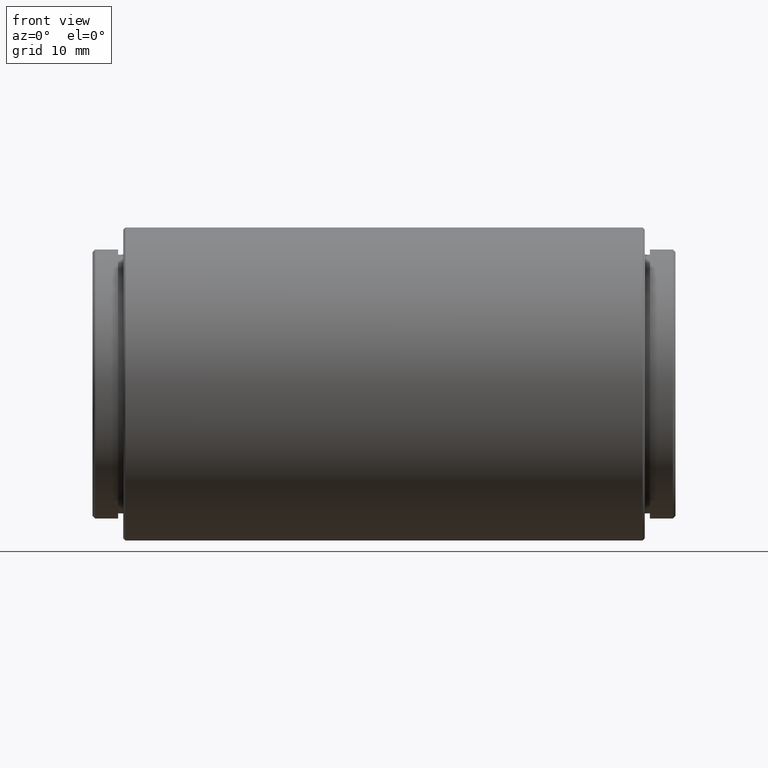
[diagram: clean part render]
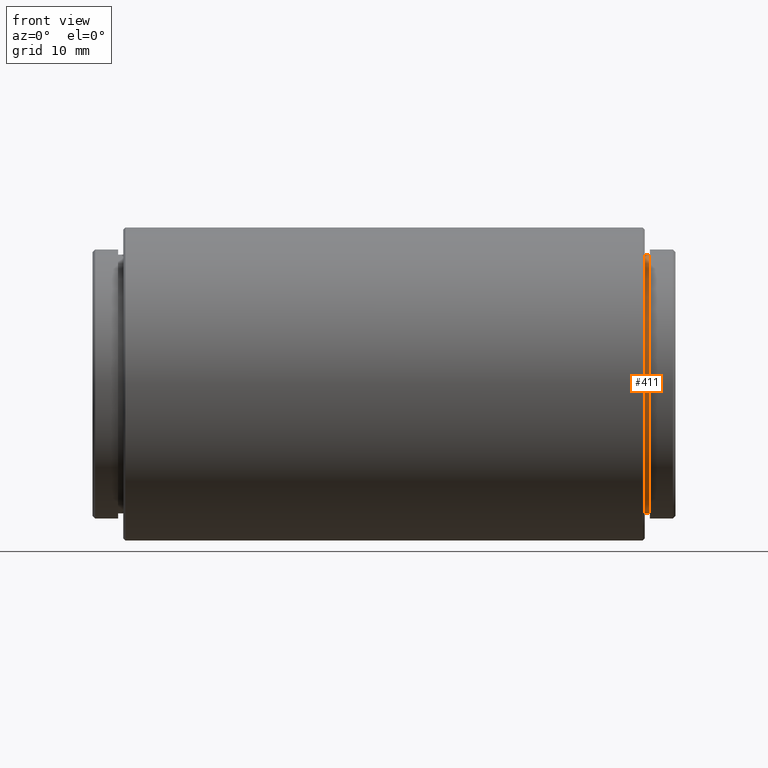
[diagram: same view with one face highlighted and labeled with its STEP entity id]
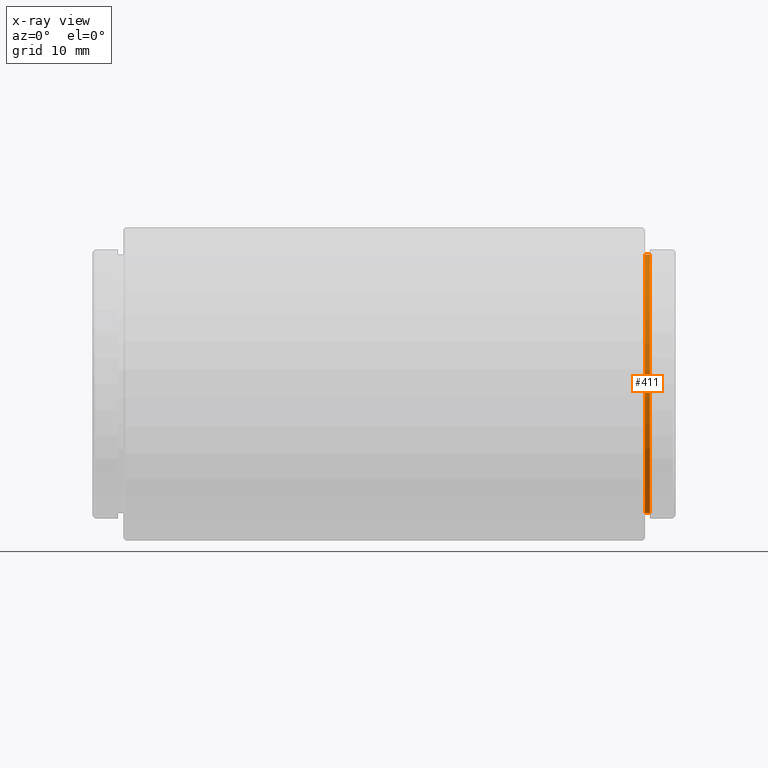
[diagram: x-ray of the same camera — body ghosted, the highlighted face saturated]
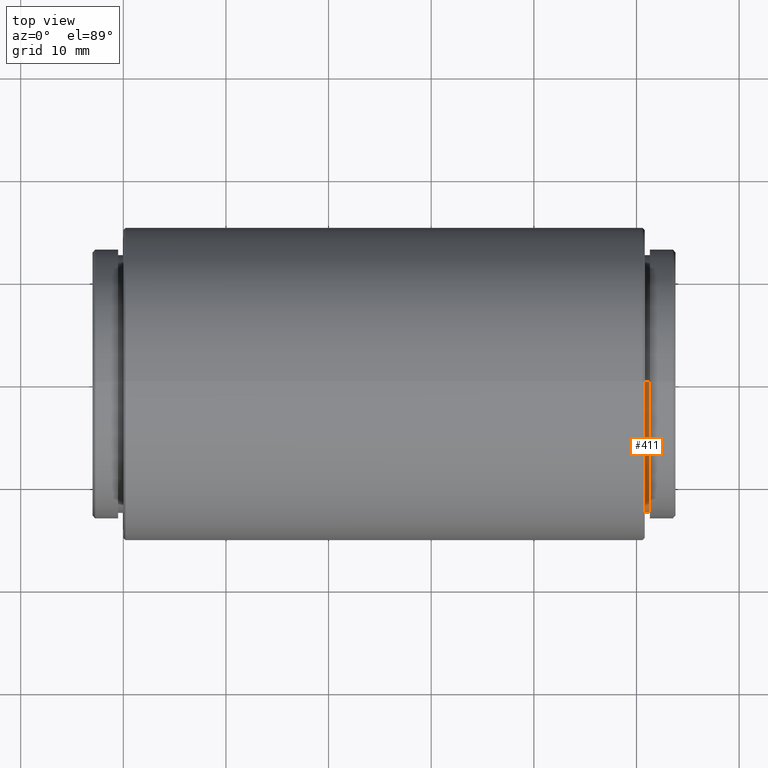
[diagram: same view with one face highlighted and labeled with its STEP entity id]
A machine part, front view. The second image highlights one B-rep face of the part: STEP entity #411.
The next image is the same camera in x-ray: the body ghosted, the highlighted face saturated — about 0% of this face is hidden behind the body in this view.
A second angle (top view) of the same face is appended — the face is thin or edge-on in the first view.
In plain terms, the highlighted cylindrical surface (partial cylindrical patch) has radius 12.6 mm, axis along (-1, -0, -0).
Its self-contained STEP definition (entity closure, byte-faithful):
#52 = CARTESIAN_POINT ( 'NONE',  ( 1.300000000000000044, 0.000000000000000000, 0.000000000000000000 ) ) ;
#73 = DIRECTION ( 'NONE',  ( 0.000000000000000000, 0.000000000000000000, -1.000000000000000000 ) ) ;
#74 = EDGE_LOOP ( 'NONE', ( #588, #660, #805, #268 ) ) ;
#91 = CARTESIAN_POINT ( 'NONE',  ( 1.300000000000000044, 0.000000000000000000, 0.000000000000000000 ) ) ;
#98 = VERTEX_POINT ( 'NONE', #830 ) ;
#139 = VECTOR ( 'NONE', #1000, 1000.000000000000000 ) ;
#252 = AXIS2_PLACEMENT_3D ( 'NONE', #52, #775, #73 ) ;
#268 = ORIENTED_EDGE ( 'NONE', *, *, #566, .T. ) ;
#310 = CARTESIAN_POINT ( 'NONE',  ( 1.300000000000000044, 0.000000000000000000, 12.60000000000000142 ) ) ;
#342 = CYLINDRICAL_SURFACE ( 'NONE', #466, 12.60000000000000142 ) ;
#358 = AXIS2_PLACEMENT_3D ( 'NONE', #427, #650, #483 ) ;
#403 = CARTESIAN_POINT ( 'NONE',  ( 0.8000000000000000444, 0.000000000000000000, 12.60000000000000142 ) ) ;
#411 = ADVANCED_FACE ( 'NONE', ( #681 ), #342, .T. ) ;
#427 = CARTESIAN_POINT ( 'NONE',  ( 0.8000000000000000444, 0.000000000000000000, 0.000000000000000000 ) ) ;
#466 = AXIS2_PLACEMENT_3D ( 'NONE', #91, #718, #1042 ) ;
#483 = DIRECTION ( 'NONE',  ( 0.000000000000000000, 0.000000000000000000, -1.000000000000000000 ) ) ;
#487 = VERTEX_POINT ( 'NONE', #403 ) ;
#508 = CARTESIAN_POINT ( 'NONE',  ( 1.300000000000000044, 1.543054966925665273E-15, -12.60000000000000142 ) ) ;
#532 = LINE ( 'NONE', #310, #668 ) ;
#534 = CARTESIAN_POINT ( 'NONE',  ( 1.300000000000000044, 1.543054966925665273E-15, -12.60000000000000142 ) ) ;
#544 = CARTESIAN_POINT ( 'NONE',  ( 1.300000000000000044, 0.000000000000000000, 12.60000000000000142 ) ) ;
#554 = LINE ( 'NONE', #508, #139 ) ;
#566 = EDGE_CURVE ( 'NONE', #487, #98, #867, .T. ) ;
#588 = ORIENTED_EDGE ( 'NONE', *, *, #713, .F. ) ;
#650 = DIRECTION ( 'NONE',  ( 1.000000000000000000, 0.000000000000000000, 0.000000000000000000 ) ) ;
#660 = ORIENTED_EDGE ( 'NONE', *, *, #788, .F. ) ;
#668 = VECTOR ( 'NONE', #1029, 1000.000000000000000 ) ;
#681 = FACE_OUTER_BOUND ( 'NONE', #74, .T. ) ;
#713 = EDGE_CURVE ( 'NONE', #900, #98, #554, .T. ) ;
#718 = DIRECTION ( 'NONE',  ( -1.000000000000000000, -0.000000000000000000, -0.000000000000000000 ) ) ;
#775 = DIRECTION ( 'NONE',  ( 1.000000000000000000, 0.000000000000000000, 0.000000000000000000 ) ) ;
#788 = EDGE_CURVE ( 'NONE', #887, #900, #991, .T. ) ;
#805 = ORIENTED_EDGE ( 'NONE', *, *, #876, .T. ) ;
#830 = CARTESIAN_POINT ( 'NONE',  ( 0.8000000000000000444, 1.543054966925665273E-15, -12.60000000000000142 ) ) ;
#867 = CIRCLE ( 'NONE', #358, 12.60000000000000142 ) ;
#876 = EDGE_CURVE ( 'NONE', #887, #487, #532, .T. ) ;
#887 = VERTEX_POINT ( 'NONE', #544 ) ;
#900 = VERTEX_POINT ( 'NONE', #534 ) ;
#991 = CIRCLE ( 'NONE', #252, 12.60000000000000142 ) ;
#1000 = DIRECTION ( 'NONE',  ( -1.000000000000000000, -0.000000000000000000, -0.000000000000000000 ) ) ;
#1029 = DIRECTION ( 'NONE',  ( -1.000000000000000000, -0.000000000000000000, -0.000000000000000000 ) ) ;
#1042 = DIRECTION ( 'NONE',  ( 0.000000000000000000, 0.000000000000000000, 1.000000000000000000 ) ) ;